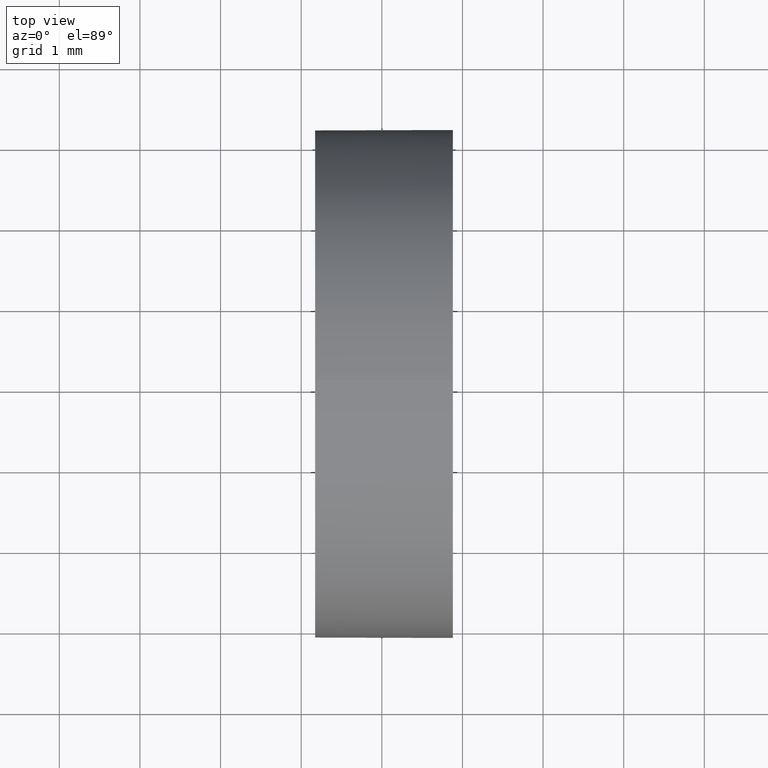
[diagram: clean part render]
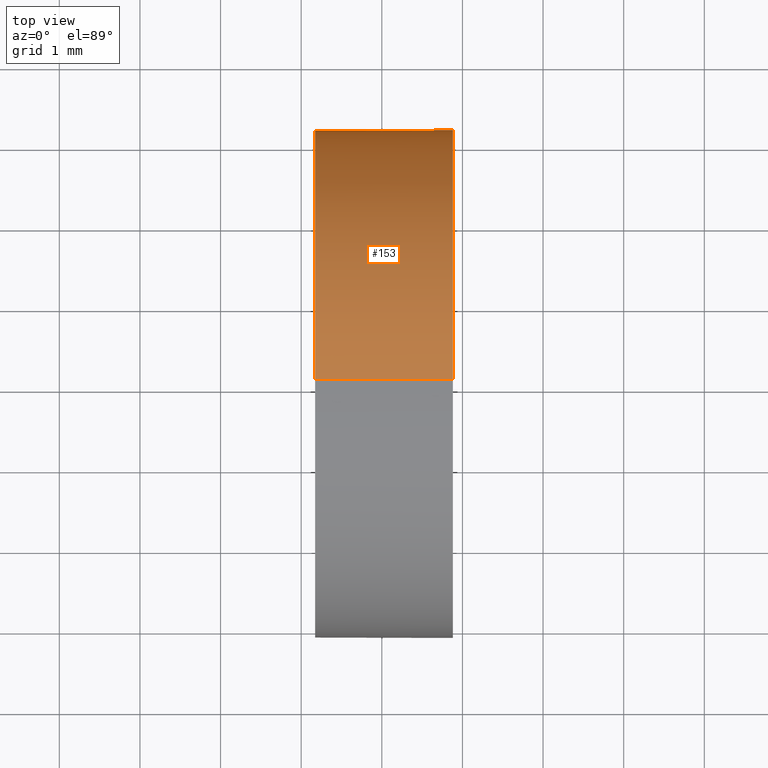
[diagram: same view with one face highlighted and labeled with its STEP entity id]
A machine part, top view. The second image highlights one B-rep face of the part: STEP entity #153.
In plain terms, the highlighted cylindrical surface (partial cylindrical patch) has radius 3.15 mm, axis along (-1, -0, -0).
Its self-contained STEP definition (entity closure, byte-faithful):
#1 = DIRECTION ( 'NONE',  ( -1.000000000000000000, -0.0000000000000000000, -0.0000000000000000000 ) ) ;
#9 = ORIENTED_EDGE ( 'NONE', *, *, #141, .T. ) ;
#15 = CARTESIAN_POINT ( 'NONE',  ( 23.88218947520227800, 13.04452057459747900, 0.0000000000000000000 ) ) ;
#18 = AXIS2_PLACEMENT_3D ( 'NONE', #50, #75, #87 ) ;
#20 = EDGE_CURVE ( 'NONE', #152, #137, #70, .T. ) ;
#24 = EDGE_CURVE ( 'NONE', #46, #137, #118, .T. ) ;
#28 = EDGE_CURVE ( 'NONE', #102, #48, #85, .T. ) ;
#41 = AXIS2_PLACEMENT_3D ( 'NONE', #15, #1, #110 ) ;
#42 = DIRECTION ( 'NONE',  ( 0.0000000000000000000, 0.0000000000000000000, 1.000000000000000000 ) ) ;
#44 = CARTESIAN_POINT ( 'NONE',  ( 23.88218947520227800, 13.04452057459747900, 3.150000000000001700 ) ) ;
#46 = VERTEX_POINT ( 'NONE', #88 ) ;
#48 = VERTEX_POINT ( 'NONE', #144 ) ;
#50 = CARTESIAN_POINT ( 'NONE',  ( 21.22493055706841100, 13.04452057459747900, 0.0000000000000000000 ) ) ;
#61 = ORIENTED_EDGE ( 'NONE', *, *, #98, .F. ) ;
#65 = CARTESIAN_POINT ( 'NONE',  ( 22.17218947520228100, 13.04452057459747900, 3.150000000000001700 ) ) ;
#67 = CARTESIAN_POINT ( 'NONE',  ( 23.88218947520227800, 13.04452057459747900, 0.0000000000000000000 ) ) ;
#70 = CIRCLE ( 'NONE', #156, 3.150000000000001700 ) ;
#75 = DIRECTION ( 'NONE',  ( -1.000000000000000000, -0.0000000000000000000, -0.0000000000000000000 ) ) ;
#77 = CIRCLE ( 'NONE', #41, 3.150000000000001700 ) ;
#80 = DIRECTION ( 'NONE',  ( -1.000000000000000000, -0.0000000000000000000, -0.0000000000000000000 ) ) ;
#85 = CIRCLE ( 'NONE', #109, 3.150000000000001700 ) ;
#87 = DIRECTION ( 'NONE',  ( 0.0000000000000000000, 0.0000000000000000000, 1.000000000000000000 ) ) ;
#88 = CARTESIAN_POINT ( 'NONE',  ( 23.88218947520227800, 13.04452057459747900, -3.150000000000001700 ) ) ;
#92 = VECTOR ( 'NONE', #154, 1000.000000000000000 ) ;
#97 = EDGE_LOOP ( 'NONE', ( #9, #166, #149, #61, #181 ) ) ;
#98 = EDGE_CURVE ( 'NONE', #102, #152, #146, .T. ) ;
#102 = VERTEX_POINT ( 'NONE', #44 ) ;
#109 = AXIS2_PLACEMENT_3D ( 'NONE', #67, #80, #111 ) ;
#110 = DIRECTION ( 'NONE',  ( 0.0000000000000000000, 0.0000000000000000000, 1.000000000000000000 ) ) ;
#111 = DIRECTION ( 'NONE',  ( 0.0000000000000000000, 0.0000000000000000000, 1.000000000000000000 ) ) ;
#118 = LINE ( 'NONE', #172, #92 ) ;
#121 = CARTESIAN_POINT ( 'NONE',  ( 21.22493055706841100, 13.04452057459747900, 3.150000000000001700 ) ) ;
#125 = CARTESIAN_POINT ( 'NONE',  ( 22.17218947520228100, 13.04452057459747900, 0.0000000000000000000 ) ) ;
#132 = VECTOR ( 'NONE', #173, 1000.000000000000000 ) ;
#137 = VERTEX_POINT ( 'NONE', #184 ) ;
#141 = EDGE_CURVE ( 'NONE', #48, #46, #77, .T. ) ;
#144 = CARTESIAN_POINT ( 'NONE',  ( 23.88218947520227800, 16.19452057459747600, 0.0000000000000000000 ) ) ;
#146 = LINE ( 'NONE', #121, #132 ) ;
#149 = ORIENTED_EDGE ( 'NONE', *, *, #20, .F. ) ;
#152 = VERTEX_POINT ( 'NONE', #65 ) ;
#153 = ADVANCED_FACE ( 'NONE', ( #179 ), #162, .T. ) ;
#154 = DIRECTION ( 'NONE',  ( -1.000000000000000000, -0.0000000000000000000, -0.0000000000000000000 ) ) ;
#156 = AXIS2_PLACEMENT_3D ( 'NONE', #125, #158, #42 ) ;
#158 = DIRECTION ( 'NONE',  ( -1.000000000000000000, -0.0000000000000000000, -0.0000000000000000000 ) ) ;
#162 = CYLINDRICAL_SURFACE ( 'NONE', #18, 3.150000000000001700 ) ;
#166 = ORIENTED_EDGE ( 'NONE', *, *, #24, .T. ) ;
#172 = CARTESIAN_POINT ( 'NONE',  ( 21.22493055706841100, 13.04452057459747900, -3.150000000000001700 ) ) ;
#173 = DIRECTION ( 'NONE',  ( -1.000000000000000000, -0.0000000000000000000, -0.0000000000000000000 ) ) ;
#179 = FACE_OUTER_BOUND ( 'NONE', #97, .T. ) ;
#181 = ORIENTED_EDGE ( 'NONE', *, *, #28, .T. ) ;
#184 = CARTESIAN_POINT ( 'NONE',  ( 22.17218947520228100, 13.04452057459747900, -3.150000000000001700 ) ) ;